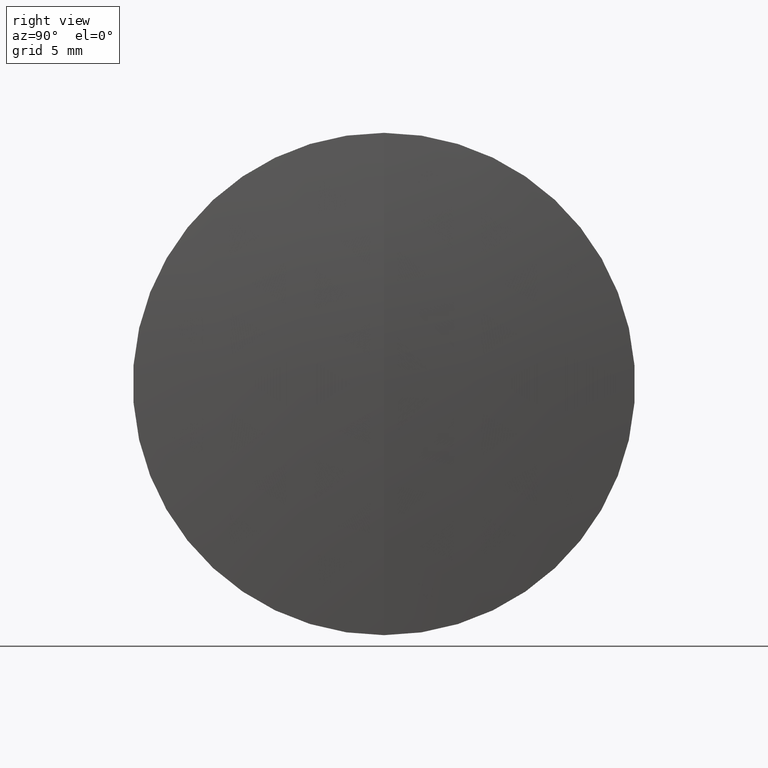
[diagram: clean part render]
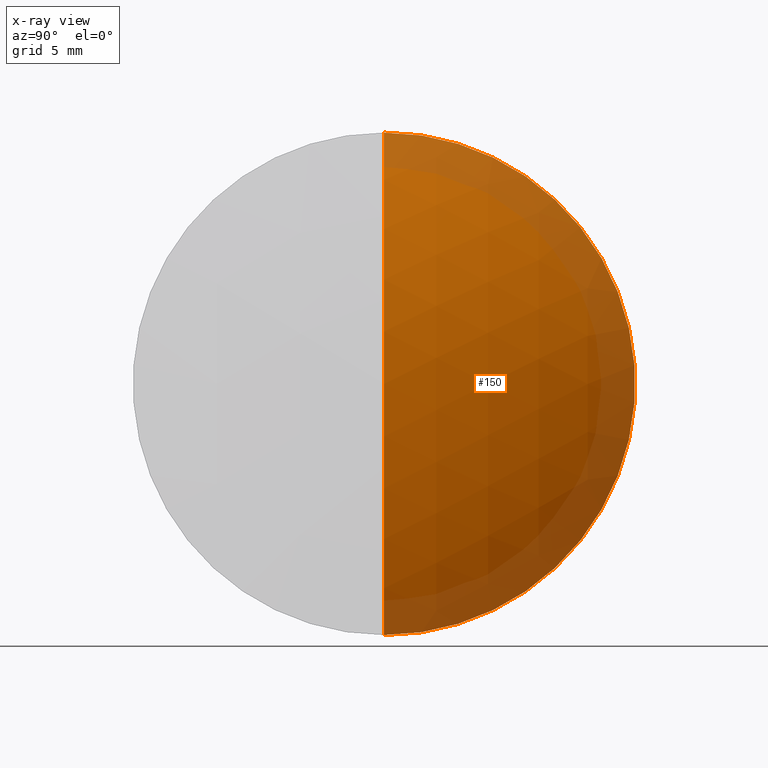
[diagram: x-ray — body ghosted, one internal face saturated and labeled with its STEP entity id]
A machine part, right view, then the same camera in x-ray: the body is ghosted and one INTERNAL B-rep face — a face not visible from any outside direction — is saturated and labeled: STEP entity #150.
In plain terms, the highlighted spherical surface has radius 25.9 mm.
Its self-contained STEP definition (entity closure, byte-faithful):
#5 = DIRECTION ( 'NONE',  ( -1.000000000000000000, -0.0000000000000000000, -0.0000000000000000000 ) ) ;
#22 = ORIENTED_EDGE ( 'NONE', *, *, #264, .F. ) ;
#37 = EDGE_LOOP ( 'NONE', ( #22, #220, #279 ) ) ;
#55 = EDGE_CURVE ( 'NONE', #159, #200, #179, .T. ) ;
#77 = DIRECTION ( 'NONE',  ( -0.0000000000000000000, 1.000000000000000000, 1.224646799147353200E-016 ) ) ;
#92 = DIRECTION ( 'NONE',  ( 0.0000000000000000000, -1.224646799147353200E-016, 1.000000000000000000 ) ) ;
#94 = CARTESIAN_POINT ( 'NONE',  ( 211.0958458084194300, 0.0000000000000000000, -3.185954776904472300E-015 ) ) ;
#105 = AXIS2_PLACEMENT_3D ( 'NONE', #165, #164, #115 ) ;
#115 = DIRECTION ( 'NONE',  ( 0.0000000000000000000, 0.0000000000000000000, 1.000000000000000000 ) ) ;
#122 = CIRCLE ( 'NONE', #285, 25.89999999999999900 ) ;
#134 = SPHERICAL_SURFACE ( 'NONE', #105, 25.89999999999999900 ) ;
#150 = ADVANCED_FACE ( 'NONE', ( #225 ), #134, .T. ) ;
#159 = VERTEX_POINT ( 'NONE', #341 ) ;
#164 = DIRECTION ( 'NONE',  ( 0.0000000000000000000, 1.000000000000000000, 0.0000000000000000000 ) ) ;
#165 = CARTESIAN_POINT ( 'NONE',  ( 211.0958458084194300, 0.0000000000000000000, -3.185954776904472300E-015 ) ) ;
#172 = EDGE_CURVE ( 'NONE', #319, #200, #177, .T. ) ;
#177 = CIRCLE ( 'NONE', #187, 12.69999999999999200 ) ;
#179 = CIRCLE ( 'NONE', #182, 25.89999999999999900 ) ;
#182 = AXIS2_PLACEMENT_3D ( 'NONE', #94, #77, #92 ) ;
#187 = AXIS2_PLACEMENT_3D ( 'NONE', #314, #5, #344 ) ;
#200 = VERTEX_POINT ( 'NONE', #237 ) ;
#210 = CARTESIAN_POINT ( 'NONE',  ( 211.0958458084194300, 0.0000000000000000000, -3.185954776904472300E-015 ) ) ;
#220 = ORIENTED_EDGE ( 'NONE', *, *, #55, .T. ) ;
#225 = FACE_OUTER_BOUND ( 'NONE', #37, .T. ) ;
#233 = DIRECTION ( 'NONE',  ( 0.0000000000000000000, 0.0000000000000000000, -1.000000000000000000 ) ) ;
#237 = CARTESIAN_POINT ( 'NONE',  ( 233.6683955093282300, 1.555301434917137800E-015, -12.69999999999999200 ) ) ;
#264 = EDGE_CURVE ( 'NONE', #159, #319, #122, .T. ) ;
#279 = ORIENTED_EDGE ( 'NONE', *, *, #172, .F. ) ;
#285 = AXIS2_PLACEMENT_3D ( 'NONE', #210, #298, #233 ) ;
#286 = CARTESIAN_POINT ( 'NONE',  ( 233.6683955093282300, 0.0000000000000000000, 12.69999999999999200 ) ) ;
#298 = DIRECTION ( 'NONE',  ( 0.0000000000000000000, -1.000000000000000000, 0.0000000000000000000 ) ) ;
#314 = CARTESIAN_POINT ( 'NONE',  ( 233.6683955093282300, 0.0000000000000000000, 0.0000000000000000000 ) ) ;
#319 = VERTEX_POINT ( 'NONE', #286 ) ;
#341 = CARTESIAN_POINT ( 'NONE',  ( 236.9958458084194300, 0.0000000000000000000, -1.600037172008650300E-015 ) ) ;
#344 = DIRECTION ( 'NONE',  ( 0.0000000000000000000, 0.0000000000000000000, 1.000000000000000000 ) ) ;